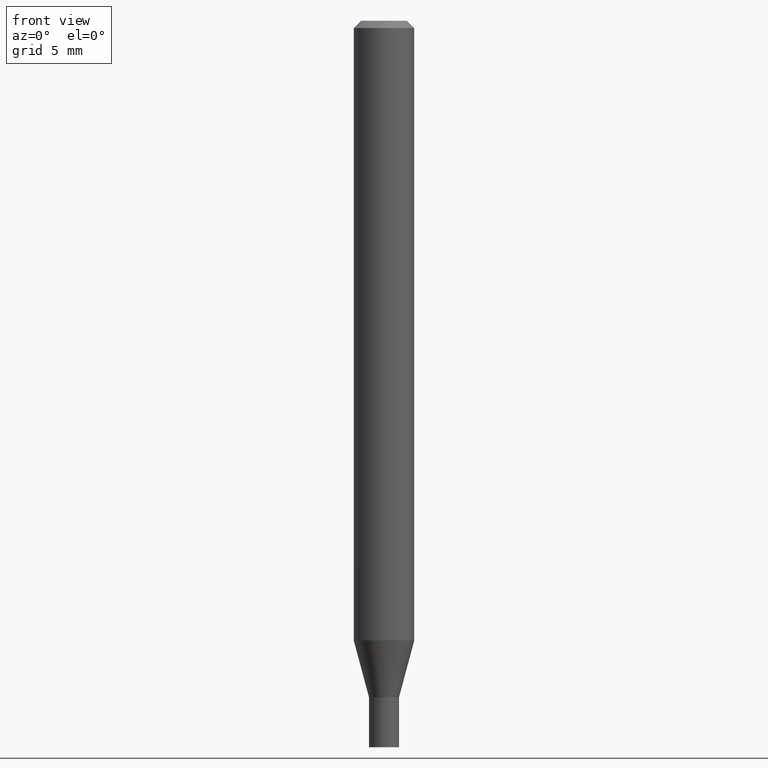
[diagram: clean part render]
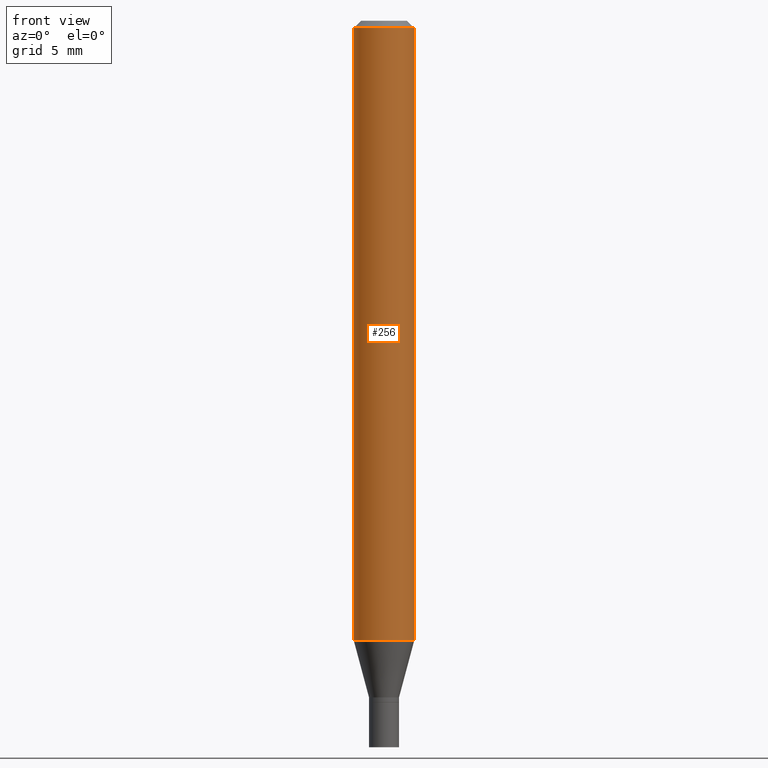
[diagram: same view with one face highlighted and labeled with its STEP entity id]
A machine part, front view. The second image highlights one B-rep face of the part: STEP entity #256.
In plain terms, the highlighted cylindrical surface (edge-blend (fillet) strip) has radius 1.5875 mm, axis along (-0, 0, 1).
Its self-contained STEP definition (entity closure, byte-faithful):
#5 = CARTESIAN_POINT ( 'NONE',  ( 0.000000000000000000, 0.000000000000000000, 0.000000000000000000 ) ) ;
#27 = CIRCLE ( 'NONE', #91, 0.06250000000000000000 ) ;
#29 = EDGE_CURVE ( 'NONE', #347, #369, #102, .T. ) ;
#47 = VERTEX_POINT ( 'NONE', #458 ) ;
#54 = ORIENTED_EDGE ( 'NONE', *, *, #338, .F. ) ;
#71 = CIRCLE ( 'NONE', #212, 0.06250000000000000000 ) ;
#87 = CARTESIAN_POINT ( 'NONE',  ( 0.06250000000000000000, -4.888073874380388472E-16, -0.01499999999999999944 ) ) ;
#91 = AXIS2_PLACEMENT_3D ( 'NONE', #426, #101, #461 ) ;
#101 = DIRECTION ( 'NONE',  ( -2.445468806185136597E-29, 3.491481338843145583E-15, 1.000000000000000000 ) ) ;
#102 = LINE ( 'NONE', #326, #423 ) ;
#110 = CARTESIAN_POINT ( 'NONE',  ( 0.06250000000000000000, -4.903577446586667063E-15, -1.279440399561580399 ) ) ;
#117 = ORIENTED_EDGE ( 'NONE', *, *, #145, .T. ) ;
#142 = EDGE_LOOP ( 'NONE', ( #225, #117, #408, #54 ) ) ;
#145 = EDGE_CURVE ( 'NONE', #47, #347, #27, .T. ) ;
#185 = DIRECTION ( 'NONE',  ( 1.000000000000000000, -6.982962677686266711E-15, 4.876176775795935793E-29 ) ) ;
#187 = VECTOR ( 'NONE', #410, 39.37007874015748143 ) ;
#193 = FACE_OUTER_BOUND ( 'NONE', #142, .T. ) ;
#211 = DIRECTION ( 'NONE',  ( -2.445468806185136877E-29, 3.491481338843145188E-15, 1.000000000000000000 ) ) ;
#212 = AXIS2_PLACEMENT_3D ( 'NONE', #363, #466, #292 ) ;
#225 = ORIENTED_EDGE ( 'NONE', *, *, #267, .F. ) ;
#256 = ADVANCED_FACE ( 'NONE', ( #193 ), #366, .T. ) ;
#267 = EDGE_CURVE ( 'NONE', #47, #432, #439, .T. ) ;
#292 = DIRECTION ( 'NONE',  ( 1.000000000000000000, -6.982962677686266711E-15, 0.000000000000000000 ) ) ;
#303 = AXIS2_PLACEMENT_3D ( 'NONE', #5, #405, #185 ) ;
#326 = CARTESIAN_POINT ( 'NONE',  ( 0.06250000000000000000, -4.364351673553916694E-16, 3.047610484872459871E-30 ) ) ;
#338 = EDGE_CURVE ( 'NONE', #432, #369, #71, .T. ) ;
#345 = CARTESIAN_POINT ( 'NONE',  ( -0.06250000000000000000, -1.815668039806898817E-15, -0.01499999999999999944 ) ) ;
#347 = VERTEX_POINT ( 'NONE', #110 ) ;
#363 = CARTESIAN_POINT ( 'NONE',  ( 3.668203209277705088E-31, -5.237222008264718399E-17, -0.01499999999999999944 ) ) ;
#366 = CYLINDRICAL_SURFACE ( 'NONE', #303, 0.06250000000000000000 ) ;
#369 = VERTEX_POINT ( 'NONE', #87 ) ;
#370 = CARTESIAN_POINT ( 'NONE',  ( -0.06250000000000000000, 4.440892098500626162E-16, -3.074334431409316114E-30 ) ) ;
#405 = DIRECTION ( 'NONE',  ( -2.445468806185136597E-29, 3.491481338843145583E-15, 1.000000000000000000 ) ) ;
#408 = ORIENTED_EDGE ( 'NONE', *, *, #29, .T. ) ;
#410 = DIRECTION ( 'NONE',  ( -2.445468806185136877E-29, 3.491481338843145188E-15, 1.000000000000000000 ) ) ;
#423 = VECTOR ( 'NONE', #211, 39.37007874015748143 ) ;
#426 = CARTESIAN_POINT ( 'NONE',  ( 3.128831586500892254E-29, -4.467142279231276182E-15, -1.279440399561580399 ) ) ;
#432 = VERTEX_POINT ( 'NONE', #345 ) ;
#439 = LINE ( 'NONE', #370, #187 ) ;
#458 = CARTESIAN_POINT ( 'NONE',  ( -0.06250000000000000000, -4.023053069381213566E-15, -1.279440399561580399 ) ) ;
#461 = DIRECTION ( 'NONE',  ( 1.000000000000000000, -6.982962677686262766E-15, 0.000000000000000000 ) ) ;
#466 = DIRECTION ( 'NONE',  ( -2.445468806185136597E-29, 3.491481338843145583E-15, 1.000000000000000000 ) ) ;